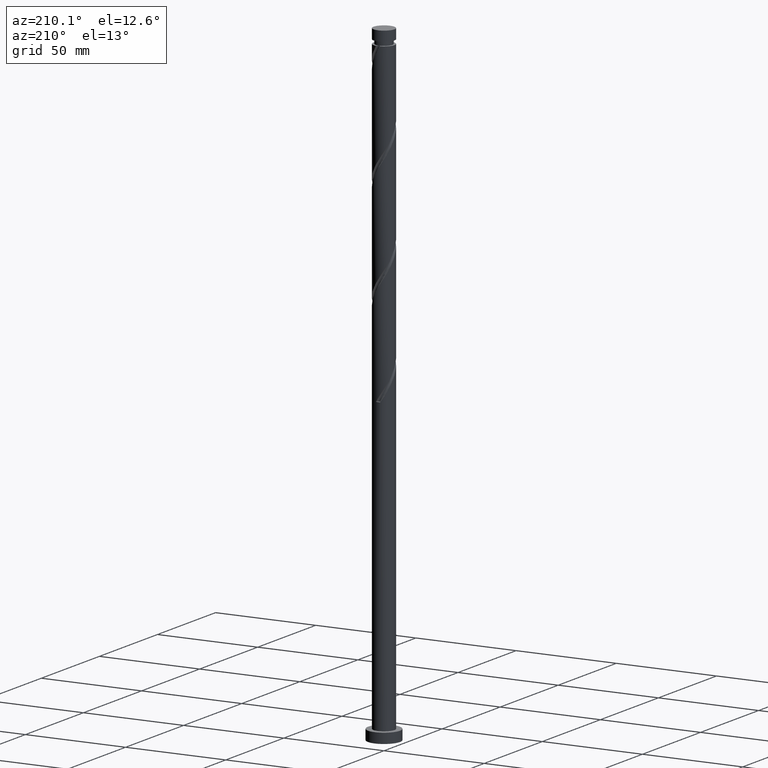
[diagram: clean part render]
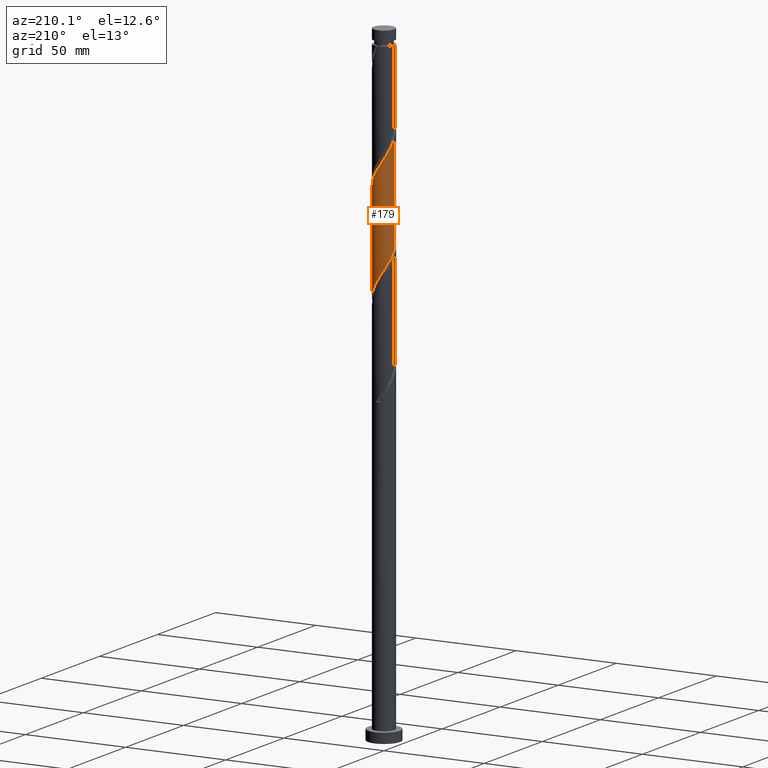
[diagram: same view with one face highlighted and labeled with its STEP entity id]
A machine part, auxiliary view. The second image highlights one B-rep face of the part: STEP entity #179.
In plain terms, the highlighted cylindrical surface (edge-blend (fillet) strip) has radius 5.25 mm, axis along (-0, -0, -1).
Its self-contained STEP definition (entity closure, byte-faithful):
#23 = DIRECTION ( 'NONE',  ( -0.000000000000000000, -0.000000000000000000, -1.000000000000000000 ) ) ;
#51 = CARTESIAN_POINT ( 'NONE',  ( -2.391046902423538789, 4.673905723312224758, 208.6338013169862506 ) ) ;
#62 = CARTESIAN_POINT ( 'NONE',  ( 4.673905723312225646, 2.391046902423538345, 195.5088013169862506 ) ) ;
#64 = CARTESIAN_POINT ( 'NONE',  ( -5.250000000000007994, 6.731523858208281792E-15, 266.9592842390801479 ) ) ;
#89 = CARTESIAN_POINT ( 'NONE',  ( 1.291056497733402475, 5.088779138424111892, 251.7588013169861938 ) ) ;
#106 = VERTEX_POINT ( 'NONE', #715 ) ;
#107 = CARTESIAN_POINT ( 'NONE',  ( -3.173607177786278655, 4.182190512291795059, 259.2588013169862506 ) ) ;
#124 =( BOUNDED_CURVE ( )  B_SPLINE_CURVE ( 2, ( #1823, #1656, #196, #343, #1242, #788, #1397, #1221, #1666, #779, #51, #1849, #1093, #326, #1830, #638, #187, #206, #468, #484, #1534, #801, #1388, #1649, #62, #919, #766, #1195, #1915, #1926, #474 ),
 .UNSPECIFIED., .F., .T. ) 
 B_SPLINE_CURVE_WITH_KNOTS ( ( 3, 2, 2, 2, 2, 2, 2, 2, 2, 2, 2, 2, 2, 2, 2, 3 ),
 ( 0.6795303401299220836, 0.6875000000000000000, 0.6964285714285713969, 0.7053571428571429047, 0.7142857142857143016, 0.7232142857142856984, 0.7321428571428570953, 0.7410714285714286031, 0.7500000000000000000, 0.7589285714285713969, 0.7678571428571429047, 0.7767857142857143016, 0.7857142857142856984, 0.7946428571428570953, 0.8035714285714286031, 0.8045303401299220836 ),
 .UNSPECIFIED. ) 
 CURVE ( )  GEOMETRIC_REPRESENTATION_ITEM ( )  RATIONAL_B_SPLINE_CURVE ( ( 0.9079949616361981946, 0.9039886423360612433, 0.9090909090909280454, 0.9033747362666029179, 0.9090909090909280454, 0.9033747362666029179, 0.9090909090909280454, 0.9033747362666029179, 0.9090909090909280454, 0.9033747362666029179, 0.9090909090909280454, 0.9033747362666029179, 0.9090909090909280454, 0.9033747362666029179, 0.9090909090909280454, 0.9033747362666029179, 0.9090909090909280454, 0.9033747362666029179, 0.9090909090909280454, 0.9033747362666029179, 0.9090909090909280454, 0.9033747362666029179, 0.9090909090909280454, 0.9033747362666029179, 0.9090909090909280454, 0.9033747362666029179, 0.9090909090909280454, 0.9033747362666029179, 0.9090909090909280454, 0.9084770030214698311, 0.9079949616361981946 ) ) 
 REPRESENTATION_ITEM ( '' )  );
#141 = CARTESIAN_POINT ( 'NONE',  ( -5.250000000000008882, 0.06317271012354863657, 266.8589215508550865 ) ) ;
#165 = VERTEX_POINT ( 'NONE', #1917 ) ;
#179 = ADVANCED_FACE ( 'NONE', ( #1005 ), #1768, .T. ) ;
#187 = CARTESIAN_POINT ( 'NONE',  ( 1.044736808961955088, 5.144999999999996909, 203.0088013169862222 ) ) ;
#196 = CARTESIAN_POINT ( 'NONE',  ( -5.144999999999996909, 1.044736808961953978, 216.1338013169861938 ) ) ;
#206 = CARTESIAN_POINT ( 'NONE',  ( 1.624439084748026563, 5.027286432312394915, 202.0713013169862791 ) ) ;
#237 = CARTESIAN_POINT ( 'NONE',  ( 4.539770163101068512, 2.702387477544009542, 245.1963013169862791 ) ) ;
#251 = CARTESIAN_POINT ( 'NONE',  ( -2.163413281146018274, 4.783528297706736154, 257.3838013169862506 ) ) ;
#257 = VERTEX_POINT ( 'NONE', #481 ) ;
#265 = AXIS2_PLACEMENT_3D ( 'NONE', #745, #1449, #1298 ) ;
#273 = CARTESIAN_POINT ( 'NONE',  ( -5.248479918644243902, 0.1263271292644601862, 266.7588013169862506 ) ) ;
#291 = DIRECTION ( 'NONE',  ( -0.000000000000000000, -0.000000000000000000, -1.000000000000000000 ) ) ;
#326 = CARTESIAN_POINT ( 'NONE',  ( -0.7176887917048005994, 5.234246269600866697, 205.8213013169863075 ) ) ;
#331 = LINE ( 'NONE', #786, #872 ) ;
#343 = CARTESIAN_POINT ( 'NONE',  ( -5.027286432312394915, 1.624439084748025230, 215.1963013169862791 ) ) ;
#346 = EDGE_CURVE ( 'NONE', #787, #165, #331, .T. ) ;
#386 = CARTESIAN_POINT ( 'NONE',  ( -1.044736808961953312, 5.145000000000009344, 255.5088013169862222 ) ) ;
#468 = CARTESIAN_POINT ( 'NONE',  ( 2.163413281146016942, 4.783528297706726384, 201.1338013169862506 ) ) ;
#474 = CARTESIAN_POINT ( 'NONE',  ( 5.249999999999997335, -3.320984608539589435E-15, 191.5583183948923249 ) ) ;
#481 = CARTESIAN_POINT ( 'NONE',  ( 5.249999999999997335, -3.320984608539589435E-15, 191.5583183948923249 ) ) ;
#484 = CARTESIAN_POINT ( 'NONE',  ( 2.702387477544005989, 4.539770163101061407, 200.1963013169862222 ) ) ;
#536 = CARTESIAN_POINT ( 'NONE',  ( 0.1263271292644615185, 5.248479918644243902, 253.6338013169861938 ) ) ;
#561 = CARTESIAN_POINT ( 'NONE',  ( 4.783528297706737042, 2.163413281146017386, 244.2588013169863075 ) ) ;
#578 = LINE ( 'NONE', #1023, #584 ) ;
#584 = VECTOR ( 'NONE', #291, 1000.000000000000000 ) ;
#612 = ORIENTED_EDGE ( 'NONE', *, *, #1165, .F. ) ;
#638 = CARTESIAN_POINT ( 'NONE',  ( 0.4650345331758827250, 5.262713567687604233, 203.9463013169862506 ) ) ;
#689 = CARTESIAN_POINT ( 'NONE',  ( 0.7176887917048040411, 5.234246269600876467, 252.6963013169862791 ) ) ;
#715 = CARTESIAN_POINT ( 'NONE',  ( 5.250000000000007994, 7.015113555117280410E-16, 240.7092842390802332 ) ) ;
#745 = CARTESIAN_POINT ( 'NONE',  ( 0.000000000000000000, 0.000000000000000000, 315.0000000000000000 ) ) ;
#766 = CARTESIAN_POINT ( 'NONE',  ( 5.088779138424103898, 1.291056497733397368, 193.6338013169862222 ) ) ;
#769 = ORIENTED_EDGE ( 'NONE', *, *, #346, .F. ) ;
#770 = CARTESIAN_POINT ( 'NONE',  ( -5.088779138424112780, 1.291056497733401587, 264.8838013169862506 ) ) ;
#779 = CARTESIAN_POINT ( 'NONE',  ( -2.917669601085083553, 4.404499439377112857, 209.5713013169862222 ) ) ;
#786 = CARTESIAN_POINT ( 'NONE',  ( -5.250000000000000000, 0.000000000000000000, 315.0000000000000000 ) ) ;
#787 = VERTEX_POINT ( 'NONE', #64 ) ;
#788 = CARTESIAN_POINT ( 'NONE',  ( -4.539770163101061407, 2.702387477544005545, 213.3213013169862791 ) ) ;
#801 = CARTESIAN_POINT ( 'NONE',  ( 3.644826878028541550, 3.824610861482511392, 198.3213013169862222 ) ) ;
#837 = CARTESIAN_POINT ( 'NONE',  ( 2.391046902423545895, 4.673905723312233640, 249.8838013169862791 ) ) ;
#846 = CARTESIAN_POINT ( 'NONE',  ( -2.702387477544009986, 4.539770163101068512, 258.3213013169862506 ) ) ;
#872 = VECTOR ( 'NONE', #23, 1000.000000000000000 ) ;
#919 = CARTESIAN_POINT ( 'NONE',  ( 4.943312007247341100, 1.864424203761995358, 194.5713013169862506 ) ) ;
#975 =( BOUNDED_CURVE ( )  B_SPLINE_CURVE ( 2, ( #1301, #1900, #988, #1416, #561, #237, #1147, #1750, #1558, #1120, #837, #1425, #89, #689, #536, #1720, #386, #1573, #251, #846, #107, #1282, #1473, #1034, #1326, #1813, #770, #1909, #273, #141, #1617 ),
 .UNSPECIFIED., .F., .T. ) 
 B_SPLINE_CURVE_WITH_KNOTS ( ( 3, 2, 2, 2, 2, 2, 2, 2, 2, 2, 2, 2, 2, 2, 2, 3 ),
 ( 0.4295303401299220836, 0.4375000000000000000, 0.4464285714285713969, 0.4553571428571429047, 0.4642857142857143016, 0.4732142857142856984, 0.4821428571428570953, 0.4910714285714286031, 0.5000000000000000000, 0.5089285714285713969, 0.5178571428571427937, 0.5267857142857143016, 0.5357142857142856984, 0.5446428571428572063, 0.5535714285714286031, 0.5545303401299220836 ),
 .UNSPECIFIED. ) 
 CURVE ( )  GEOMETRIC_REPRESENTATION_ITEM ( )  RATIONAL_B_SPLINE_CURVE ( ( 0.9079949616362053000, 0.9039886423360684597, 0.9090909090909352619, 0.9033747362666101344, 0.9090909090909352619, 0.9033747362666101344, 0.9090909090909352619, 0.9033747362666101344, 0.9090909090909352619, 0.9033747362666101344, 0.9090909090909352619, 0.9033747362666101344, 0.9090909090909352619, 0.9033747362666101344, 0.9090909090909352619, 0.9033747362666101344, 0.9090909090909352619, 0.9033747362666101344, 0.9090909090909352619, 0.9033747362666101344, 0.9090909090909352619, 0.9033747362666101344, 0.9090909090909352619, 0.9033747362666101344, 0.9090909090909352619, 0.9033747362666101344, 0.9090909090909352619, 0.9033747362666101344, 0.9090909090909352619, 0.9084770030214770475, 0.9079949616362053000 ) ) 
 REPRESENTATION_ITEM ( '' )  );
#988 = CARTESIAN_POINT ( 'NONE',  ( 5.145000000000008455, 1.044736808961953756, 242.3838013169862791 ) ) ;
#1005 = FACE_OUTER_BOUND ( 'NONE', #1231, .T. ) ;
#1023 = CARTESIAN_POINT ( 'NONE',  ( 5.250000000000000000, 6.429395695523604153E-16, 315.0000000000000000 ) ) ;
#1034 = CARTESIAN_POINT ( 'NONE',  ( -4.404499439377119963, 2.917669601085089326, 262.0713013169862506 ) ) ;
#1093 = CARTESIAN_POINT ( 'NONE',  ( -1.291056497733398478, 5.088779138424103898, 206.7588013169862506 ) ) ;
#1120 = CARTESIAN_POINT ( 'NONE',  ( 2.917669601085090214, 4.404499439377119963, 248.9463013169862506 ) ) ;
#1147 = CARTESIAN_POINT ( 'NONE',  ( 4.182190512291795059, 3.173607177786278211, 246.1338013169862222 ) ) ;
#1165 = EDGE_CURVE ( 'NONE', #106, #787, #975, .T. ) ;
#1195 = CARTESIAN_POINT ( 'NONE',  ( 5.234246269600866697, 0.7176887917047994891, 192.6963013169862506 ) ) ;
#1221 = CARTESIAN_POINT ( 'NONE',  ( -3.824610861482512281, 3.644826878028541106, 211.4463013169862791 ) ) ;
#1231 = EDGE_LOOP ( 'NONE', ( #612, #1888, #1838, #769 ) ) ;
#1242 = CARTESIAN_POINT ( 'NONE',  ( -4.783528297706726384, 2.163413281146015610, 214.2588013169862506 ) ) ;
#1282 = CARTESIAN_POINT ( 'NONE',  ( -3.644826878028546435, 3.824610861482520274, 260.1963013169863075 ) ) ;
#1298 = DIRECTION ( 'NONE',  ( -1.000000000000000000, 0.000000000000000000, 0.000000000000000000 ) ) ;
#1301 = CARTESIAN_POINT ( 'NONE',  ( 5.250000000000007994, 7.015113555117280410E-16, 240.7092842390802332 ) ) ;
#1326 = CARTESIAN_POINT ( 'NONE',  ( -4.673905723312233640, 2.391046902423545006, 263.0088013169862506 ) ) ;
#1388 = CARTESIAN_POINT ( 'NONE',  ( 4.024663158702826316, 3.371140231283796584, 197.3838013169862791 ) ) ;
#1397 = CARTESIAN_POINT ( 'NONE',  ( -4.182190512291787066, 3.173607177786273326, 212.3838013169861654 ) ) ;
#1416 = CARTESIAN_POINT ( 'NONE',  ( 5.027286432312405573, 1.624439084748025897, 243.3213013169862222 ) ) ;
#1425 = CARTESIAN_POINT ( 'NONE',  ( 1.864424203762002241, 4.943312007247349094, 250.8213013169862791 ) ) ;
#1429 = EDGE_CURVE ( 'NONE', #165, #257, #124, .T. ) ;
#1449 = DIRECTION ( 'NONE',  ( -0.000000000000000000, -0.000000000000000000, -1.000000000000000000 ) ) ;
#1473 = CARTESIAN_POINT ( 'NONE',  ( -4.024663158702832533, 3.371140231283804578, 261.1338013169861938 ) ) ;
#1491 = EDGE_CURVE ( 'NONE', #106, #257, #578, .T. ) ;
#1534 = CARTESIAN_POINT ( 'NONE',  ( 3.173607177786274214, 4.182190512291786177, 199.2588013169861938 ) ) ;
#1558 = CARTESIAN_POINT ( 'NONE',  ( 3.371140231283805466, 4.024663158702830756, 248.0088013169862791 ) ) ;
#1573 = CARTESIAN_POINT ( 'NONE',  ( -1.624439084748026341, 5.027286432312403797, 256.4463013169862506 ) ) ;
#1617 = CARTESIAN_POINT ( 'NONE',  ( -5.250000000000007994, 6.731523858208281792E-15, 266.9592842390801479 ) ) ;
#1649 = CARTESIAN_POINT ( 'NONE',  ( 4.404499439377113745, 2.917669601085082665, 196.4463013169862791 ) ) ;
#1656 = CARTESIAN_POINT ( 'NONE',  ( -5.249999999999998224, 0.5276448530110893209, 216.9700473159286958 ) ) ;
#1666 = CARTESIAN_POINT ( 'NONE',  ( -3.371140231283797029, 4.024663158702826316, 210.5088013169861938 ) ) ;
#1720 = CARTESIAN_POINT ( 'NONE',  ( -0.4650345331758813372, 5.262713567687611338, 254.5713013169862506 ) ) ;
#1750 = CARTESIAN_POINT ( 'NONE',  ( 3.824610861482520274, 3.644826878028545991, 247.0713013169861938 ) ) ;
#1768 = CYLINDRICAL_SURFACE ( 'NONE', #265, 5.250000000000000000 ) ;
#1813 = CARTESIAN_POINT ( 'NONE',  ( -4.943312007247349094, 1.864424203762000465, 263.9463013169861938 ) ) ;
#1823 = CARTESIAN_POINT ( 'NONE',  ( -5.249999999999998224, 2.850822742611512929E-15, 217.8083183948922965 ) ) ;
#1830 = CARTESIAN_POINT ( 'NONE',  ( -0.1263271292644588817, 5.248479918644234132, 204.8838013169862222 ) ) ;
#1838 = ORIENTED_EDGE ( 'NONE', *, *, #1429, .F. ) ;
#1849 = CARTESIAN_POINT ( 'NONE',  ( -1.864424203761996690, 4.943312007247341100, 207.6963013169862222 ) ) ;
#1888 = ORIENTED_EDGE ( 'NONE', *, *, #1491, .T. ) ;
#1900 = CARTESIAN_POINT ( 'NONE',  ( 5.250000000000007994, 0.5276448530110883217, 241.5475553180438339 ) ) ;
#1909 = CARTESIAN_POINT ( 'NONE',  ( -5.234246269600876467, 0.7176887917048030419, 265.8213013169862506 ) ) ;
#1915 = CARTESIAN_POINT ( 'NONE',  ( 5.248479918644231468, 0.1263271292644580490, 191.7588013169862506 ) ) ;
#1917 = CARTESIAN_POINT ( 'NONE',  ( -5.249999999999998224, 2.850822742611512929E-15, 217.8083183948922965 ) ) ;
#1926 = CARTESIAN_POINT ( 'NONE',  ( 5.249999999999997335, 0.06317271012354659654, 191.6586810831173580 ) ) ;